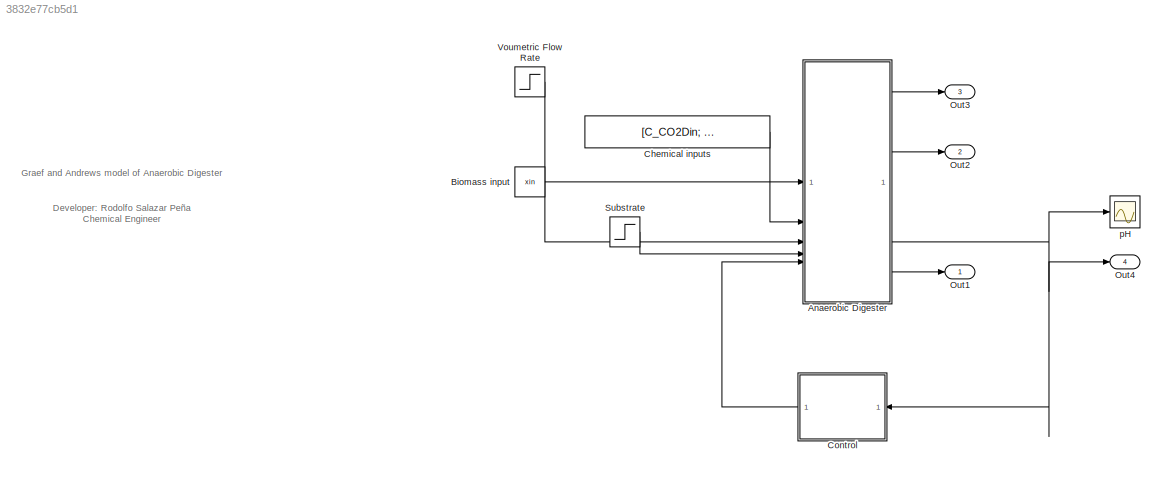
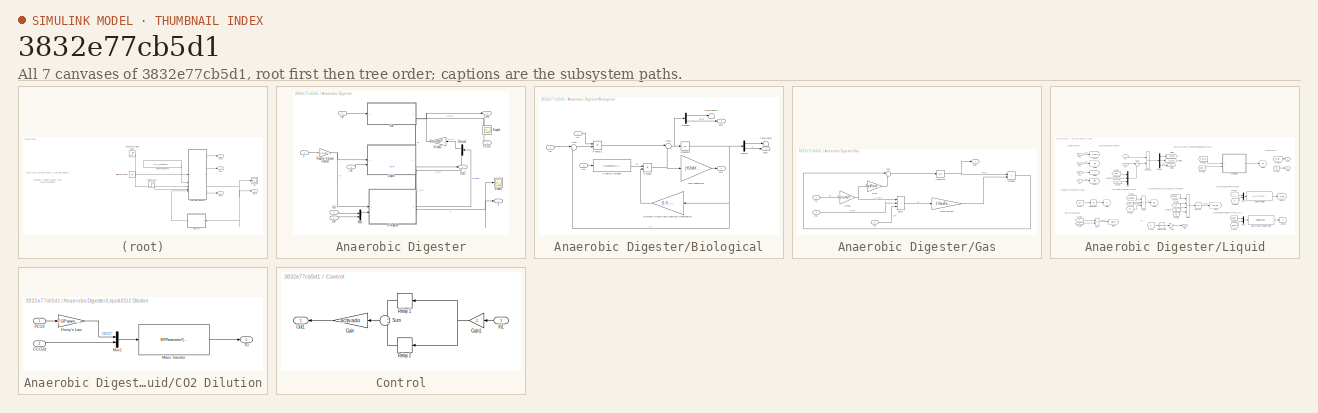
[diagram: thumbnail index - all 7 canvases of the model, root first then tree order]
MODEL slx_3832e77cb5d1
KIND model
CONFIG AbsTol = auto
CONFIG EnableMultiTasking = off
CONFIG FixedStep = auto
CONFIG MaxStep = auto
CONFIG MinStep = auto
CONFIG RelTol = 1e-3
CONFIG SampleTimeConstraint = Unconstrained
CONFIG SolverName = VariableStepAuto
CONFIG StartTime = 0.0
CONFIG StopTime = tspan
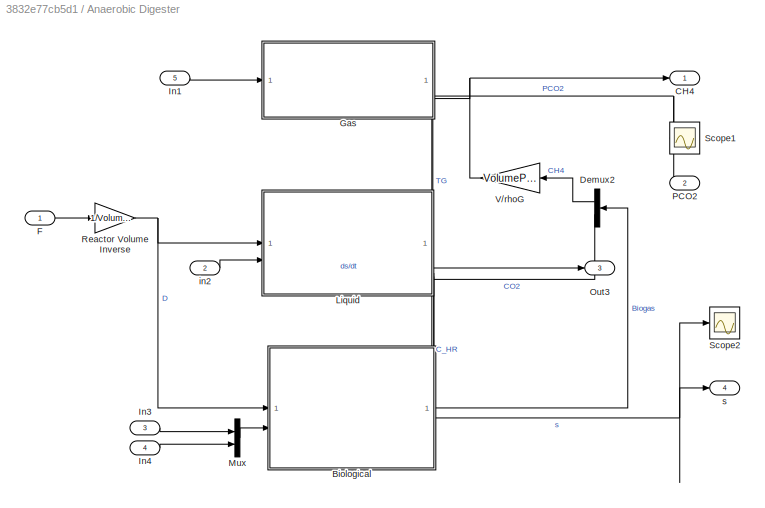
BLOCK [SubSystem] Anaerobic Digester
BLOCK [SubSystem] Anaerobic Digester/Biological
  Description = Image Credit: “Colorful Microorganisms: A Fascinating World Revealed” — image generated by Easy-Peasy.AI, licensed under Creative Commons. Source: easy-peasy.ai (https://easy-peasy.ai/ai-image-generator/images/colorful-microorganisms-intricate-shapes-forms-microbial-world
  PortSchema = {"entries":[{"content":{"sides":[{"content":{"connectorIds":["In1","In2"]},"type":"ConnectorPlacement.EquallySpacedRectSide","uuid":"94ecfc72-442c-41e1-8615-bec035df41b7"},{"content":{"connectorIds":["Out1"],"side":"RIGHT"},"type":"ConnectorPlacement.EquallySpacedRectSide","uuid":"bdca07f7-8c82-4860-9473-7970328f5f38"},{"content":{"connectorIds":["In3","Out2","Out3"],"side":"TOP"},"type":"Connecto...<+265ch>
BLOCK [Demux] Anaerobic Digester/Biological/Demux
  Outputs = 2
BLOCK [Demux] Anaerobic Digester/Biological/Demux1
  Outputs = 2
BLOCK [Gain] Anaerobic Digester/Biological/Gas Generation
  Gain = [YCH4X 0; YCO2X 0]
  Multiplication = Matrix(K*u)
BLOCK [Integrator] Anaerobic Digester/Biological/Integrator
  InitialCondition = [initx; inits]
BLOCK [Fcn] Anaerobic Digester/Biological/Kinetics Haldane
  Expr = Parameter1/(1+Parameter2/u(1)+u(1)/Parameter3)
BLOCK [Gain] Anaerobic Digester/Biological/Microbial Growth and Substrate Consumption
  Gain = [1 0; -1/YXS 0]
  Multiplication = Matrix(K*u)
BLOCK [Product] Anaerobic Digester/Biological/Product
BLOCK [Product] Anaerobic Digester/Biological/Product1
BLOCK [Sum] Anaerobic Digester/Biological/Sum
  Inputs = |+-
BLOCK [Sum] Anaerobic Digester/Biological/Sum1
  Inputs = |++
BLOCK [Terminator] Anaerobic Digester/Biological/Terminator
BLOCK [Terminator] Anaerobic Digester/Biological/Terminator1
BLOCK [Inport] Anaerobic Digester/Biological/in1
BLOCK [Inport] Anaerobic Digester/Biological/in2
  Port = 2
BLOCK [Inport] Anaerobic Digester/Biological/in3
  Port = 3
BLOCK [Outport] Anaerobic Digester/Biological/out1
BLOCK [Outport] Anaerobic Digester/Biological/out2
  Port = 2
BLOCK [Outport] Anaerobic Digester/Biological/out3
  Port = 3
BLOCK [Outport] Anaerobic Digester/CH4
BLOCK [Demux] Anaerobic Digester/Demux2
  Outputs = 2
BLOCK [Inport] Anaerobic Digester/F
BLOCK [SubSystem] Anaerobic Digester/Gas
  Description = Image Credit: “Particle Model of a Gas (Teilchenmodell Gas)” — by Kaneiderdaniel, licensed under CC BY-SA 3.0. Source: Wikimedia Commons (File:Teilchenmodell_Gas.svg)
  PortSchema = {"entries":[{"content":{"sides":[{"content":{"connectorIds":["In1"]},"type":"ConnectorPlacement.EquallySpacedRectSide","uuid":"3565c727-b36c-46d2-95bd-ab32174b37cb"},{"content":{"connectorIds":["In3"],"side":"RIGHT"},"type":"ConnectorPlacement.EquallySpacedRectSide","uuid":"c4e665d1-7db3-4509-b4b2-58bd1ad74d47"},{"content":{"side":"TOP"},"type":"ConnectorPlacement.EquallySpacedRectSide","uuid":"7f...<+377ch>
BLOCK [Gain] Anaerobic Digester/Gas/1//Gas Volume
  Gain = 1/GasParameter2
BLOCK [Integrator] Anaerobic Digester/Gas/Integrator
  InitialCondition = InitGas
BLOCK [Gain] Anaerobic Digester/Gas/P//VG
  Gain = GasParameter1/GasParameter2
BLOCK [Product] Anaerobic Digester/Gas/Product
BLOCK [Sum] Anaerobic Digester/Gas/Sum
  Inputs = |-+
BLOCK [Sum] Anaerobic Digester/Gas/Sum2
  IconShape = rectangular
  Inputs = ++|+
BLOCK [Gain] Anaerobic Digester/Gas/V//rhoG
  Gain = VolumeParameter/GasParameter3
BLOCK [Inport] Anaerobic Digester/Gas/in1
  Port = 2
BLOCK [Inport] Anaerobic Digester/Gas/in2
  Port = 3
BLOCK [Inport] Anaerobic Digester/Gas/in3
BLOCK [Outport] Anaerobic Digester/Gas/out1
BLOCK [Inport] Anaerobic Digester/In1
  Port = 5
BLOCK [Inport] Anaerobic Digester/In3
  Port = 3
BLOCK [Inport] Anaerobic Digester/In4
  Port = 4
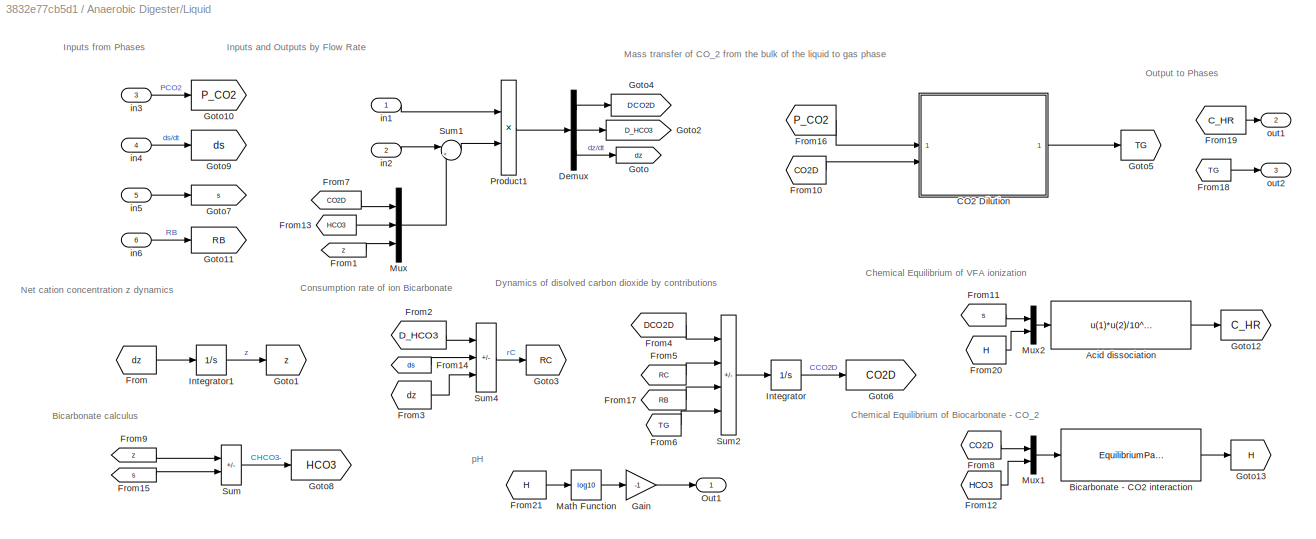
BLOCK [SubSystem] Anaerobic Digester/Liquid
  Description = Image Credit: “Liquid Water Waves Background” — image by Andrea Stöckel, in the public domain (CC0). Source: PublicDomainPictures.net (https://www.publicdomainpictures.net/es/view-image.php?image=431076&picture=liquido-de-fondo-de-agua-de-ondas)
  PortSchema = {"entries":[{"content":{"sides":[{"content":{"connectorIds":["In1","In2"]},"type":"ConnectorPlacement.EquallySpacedRectSide","uuid":"2cd52875-f219-461b-bc38-0fc8a9bb25f3"},{"content":{"connectorIds":["In6","Out1"],"side":"RIGHT"},"type":"ConnectorPlacement.EquallySpacedRectSide","uuid":"4617526c-ef4d-41e9-b20c-a88def61ea23"},{"content":{"connectorIds":["Out3","In3"],"side":"TOP"},"type":"Connector...<+426ch>
BLOCK [Fcn] Anaerobic Digester/Liquid/Acid dissociation
  Expr = u(1)*u(2)/10^(-IonicParameter)
BLOCK [Fcn] Anaerobic Digester/Liquid/Bicarbonate - CO2 interaction
  Expr = EquilibriumParameter*u(1)/u(2)
BLOCK [SubSystem] Anaerobic Digester/Liquid/CO2 Dilution
BLOCK [Inport] Anaerobic Digester/Liquid/CO2 Dilution/CCO2d
  Port = 2
BLOCK [Gain] Anaerobic Digester/Liquid/CO2 Dilution/Henry's Law
  Gain = TGParameter1
BLOCK [Fcn] Anaerobic Digester/Liquid/CO2 Dilution/Mass Transfer
  Expr = MTParameter*(u(2)-u(1))
BLOCK [Mux] Anaerobic Digester/Liquid/CO2 Dilution/Mux1
  DisplayOption = bar
  Inputs = 2
BLOCK [Inport] Anaerobic Digester/Liquid/CO2 Dilution/PCO2
BLOCK [Outport] Anaerobic Digester/Liquid/CO2 Dilution/TG
BLOCK [Demux] Anaerobic Digester/Liquid/Demux
  Outputs = 3
BLOCK [From] Anaerobic Digester/Liquid/From
  GotoTag = dz
BLOCK [From] Anaerobic Digester/Liquid/From1
  GotoTag = z
BLOCK [From] Anaerobic Digester/Liquid/From10
  GotoTag = CO2D
BLOCK [From] Anaerobic Digester/Liquid/From11
  GotoTag = s
BLOCK [From] Anaerobic Digester/Liquid/From12
  GotoTag = HCO3
BLOCK [From] Anaerobic Digester/Liquid/From13
  GotoTag = HCO3
BLOCK [From] Anaerobic Digester/Liquid/From14
  GotoTag = ds
BLOCK [From] Anaerobic Digester/Liquid/From15
  GotoTag = s
BLOCK [From] Anaerobic Digester/Liquid/From16
  GotoTag = P_CO2
BLOCK [From] Anaerobic Digester/Liquid/From17
  GotoTag = RB
BLOCK [From] Anaerobic Digester/Liquid/From18
  GotoTag = TG
BLOCK [From] Anaerobic Digester/Liquid/From19
  GotoTag = C_HR
BLOCK [From] Anaerobic Digester/Liquid/From2
  GotoTag = D_HCO3
BLOCK [From] Anaerobic Digester/Liquid/From20
  GotoTag = H
BLOCK [From] Anaerobic Digester/Liquid/From21
  GotoTag = H
BLOCK [From] Anaerobic Digester/Liquid/From3
  GotoTag = dz
BLOCK [From] Anaerobic Digester/Liquid/From4
  GotoTag = DCO2D
BLOCK [From] Anaerobic Digester/Liquid/From5
  GotoTag = RC
BLOCK [From] Anaerobic Digester/Liquid/From6
  GotoTag = TG
BLOCK [From] Anaerobic Digester/Liquid/From7
  GotoTag = CO2D
BLOCK [From] Anaerobic Digester/Liquid/From8
  GotoTag = CO2D
BLOCK [From] Anaerobic Digester/Liquid/From9
  GotoTag = z
BLOCK [Gain] Anaerobic Digester/Liquid/Gain
  Gain = -1
BLOCK [Goto] Anaerobic Digester/Liquid/Goto
  GotoTag = dz
BLOCK [Goto] Anaerobic Digester/Liquid/Goto1
  GotoTag = z
BLOCK [Goto] Anaerobic Digester/Liquid/Goto10
  GotoTag = P_CO2
BLOCK [Goto] Anaerobic Digester/Liquid/Goto11
  GotoTag = RB
BLOCK [Goto] Anaerobic Digester/Liquid/Goto12
  GotoTag = C_HR
BLOCK [Goto] Anaerobic Digester/Liquid/Goto13
  GotoTag = H
BLOCK [Goto] Anaerobic Digester/Liquid/Goto2
  GotoTag = D_HCO3
BLOCK [Goto] Anaerobic Digester/Liquid/Goto3
  GotoTag = RC
BLOCK [Goto] Anaerobic Digester/Liquid/Goto4
  GotoTag = DCO2D
BLOCK [Goto] Anaerobic Digester/Liquid/Goto5
  GotoTag = TG
BLOCK [Goto] Anaerobic Digester/Liquid/Goto6
  GotoTag = CO2D
BLOCK [Goto] Anaerobic Digester/Liquid/Goto7
  GotoTag = s
BLOCK [Goto] Anaerobic Digester/Liquid/Goto8
  GotoTag = HCO3
BLOCK [Goto] Anaerobic Digester/Liquid/Goto9
  GotoTag = ds
BLOCK [Integrator] Anaerobic Digester/Liquid/Integrator
  InitialCondition = InitLiquid1
BLOCK [Integrator] Anaerobic Digester/Liquid/Integrator1
  InitialCondition = InitLiquid2
BLOCK [Math] Anaerobic Digester/Liquid/Math Function
  Operator = log10
BLOCK [Mux] Anaerobic Digester/Liquid/Mux
  DisplayOption = bar
  Inputs = 3
BLOCK [Mux] Anaerobic Digester/Liquid/Mux1
  DisplayOption = bar
  Inputs = 2
BLOCK [Mux] Anaerobic Digester/Liquid/Mux2
  DisplayOption = bar
  Inputs = 2
BLOCK [Outport] Anaerobic Digester/Liquid/Out1
BLOCK [Product] Anaerobic Digester/Liquid/Product1
BLOCK [Sum] Anaerobic Digester/Liquid/Sum
  IconShape = rectangular
  Inputs = +-
BLOCK [Sum] Anaerobic Digester/Liquid/Sum1
  Inputs = |+-
BLOCK [Sum] Anaerobic Digester/Liquid/Sum2
  IconShape = rectangular
  Inputs = +|++-
BLOCK [Sum] Anaerobic Digester/Liquid/Sum4
  IconShape = rectangular
  Inputs = +|+-
BLOCK [Inport] Anaerobic Digester/Liquid/in1
BLOCK [Inport] Anaerobic Digester/Liquid/in2
  Port = 2
BLOCK [Inport] Anaerobic Digester/Liquid/in3
  Port = 3
BLOCK [Inport] Anaerobic Digester/Liquid/in4
  Port = 4
BLOCK [Inport] Anaerobic Digester/Liquid/in5
  Port = 5
BLOCK [Inport] Anaerobic Digester/Liquid/in6
  Port = 6
BLOCK [Outport] Anaerobic Digester/Liquid/out1
  Port = 2
BLOCK [Outport] Anaerobic Digester/Liquid/out2
  Port = 3
BLOCK [Mux] Anaerobic Digester/Mux
  DisplayOption = bar
  Inputs = 2
BLOCK [Outport] Anaerobic Digester/Out3
  Port = 3
BLOCK [Outport] Anaerobic Digester/PCO2
  Port = 2
BLOCK [Gain] Anaerobic Digester/Reactor Volume Inverse
  Gain = 1/VolumeParameter
BLOCK [Scope] Anaerobic Digester/Scope1
  ActiveDisplayYMaximum = 1
  ActiveDisplayYMinimum = -1
  DataLoggingVariableName = ScopeData1
  Floating = off
  GraphicalSettings = {"Style":{"BackgroundColor":[0.12941176470588237,0.12941176470588237,0.12941176470588237],"AxesColor":[0.07058823529411765,0.07058823529411765,0.07058823529411765],"LabelsColor":[0.8509803921568627,0.8509803921568627,0.8509803921568627],"PreserveColors":false,"Visible":[true],"LineStyle":["-"],"LineWidth":[1.5],"BarWidth":[0.9],"LineColor":["auto"],"LineFaceAlpha":[1],"LineEdgeAlpha":[1],"Marker":...<+1890ch>
  MultipleDisplayCache = [{"MaxYLimMag":1,"MaxYLimReal":1,"MinYLimMag":0,"MinYLimReal":-1,"PlotAsMagnitudePhase":false,"ShowGrid":true,"ShowLegend":false,"Title":"%<SignalLabel>","YLabel":""}]
  NumInputPorts = 1
  ScopeFrameLocation = window
  WasSavedAsWebScope = on
  WindowPosition = [403.000000,174.000000,560.000000,420.000000,]
BLOCK [Scope] Anaerobic Digester/Scope2
  ActiveDisplayYMaximum = 1
  ActiveDisplayYMinimum = -1
  DataLoggingVariableName = ScopeData2
  Floating = off
  GraphicalSettings = {"Style":{"BackgroundColor":[0.12941176470588237,0.12941176470588237,0.12941176470588237],"AxesColor":[0.07058823529411765,0.07058823529411765,0.07058823529411765],"LabelsColor":[0.8509803921568627,0.8509803921568627,0.8509803921568627],"PreserveColors":false,"Visible":[true],"LineStyle":["-"],"LineWidth":[1.5],"BarWidth":[0.9],"LineColor":["auto"],"LineFaceAlpha":[1],"LineEdgeAlpha":[1],"Marker":...<+1884ch>
  MultipleDisplayCache = [{"MaxYLimMag":1,"MaxYLimReal":1,"MinYLimMag":0,"MinYLimReal":-1,"PlotAsMagnitudePhase":false,"ShowGrid":true,"ShowLegend":false,"Title":"%<SignalLabel>","YLabel":""}]
  NumInputPorts = 1
  ScopeFrameLocation = window
  WasSavedAsWebScope = on
  WindowPosition = [403.000000,174.000000,560.000000,420.000000,]
BLOCK [Gain] Anaerobic Digester/V//rhoG
  Gain = VolumeParameter/rhoG
BLOCK [Inport] Anaerobic Digester/in2
  Port = 2
BLOCK [Outport] Anaerobic Digester/s
  Port = 4
BLOCK [Constant] Biomass input
  Value = xin
BLOCK [Constant] Chemical inputs
  Value = [C_CO2Din; C_HCO3in; zin]
BLOCK [SubSystem] Control
BLOCK [Gain] Control/Gain
  Gain = activado
BLOCK [Gain] Control/Gain1
  Gain = -1
BLOCK [Inport] Control/In1
BLOCK [Outport] Control/Out1
BLOCK [Relay] Control/Relay 1
  OffSwitchValue = -pHTurnedOff
  OnOutputValue = GasFlow1
  OnSwitchValue = -pHThreshold1
BLOCK [Relay] Control/Relay 2
  OffSwitchValue = -pHTurnedOff
  OnOutputValue = GasFlow2
  OnSwitchValue = -pHThreshold2
BLOCK [Sum] Control/Sum
BLOCK [Outport] Out1
BLOCK [Outport] Out2
  Port = 2
BLOCK [Outport] Out3
  Port = 3
BLOCK [Outport] Out4
  Port = 4
BLOCK [Step] Substrate
  After = sif2
  Before = sif1
  SampleTime = 0
BLOCK [Step] Voumetric Flow Rate
  After = F2
  Before = F1
  SampleTime = 0
BLOCK [Scope] pH
  ActiveDisplayYMaximum = 7.2867188541254588
  ActiveDisplayYMinimum = 3.560384025804944
  Floating = off
  GraphicalSettings = {"Style":{"BackgroundColor":[0.12941176470588237,0.12941176470588237,0.12941176470588237],"AxesColor":[0.07058823529411765,0.07058823529411765,0.07058823529411765],"LabelsColor":[0.8509803921568627,0.8509803921568627,0.8509803921568627],"PreserveColors":false,"Visible":[true],"LineStyle":["-"],"LineWidth":[1.5],"BarWidth":[0.9],"LineColor":["auto"],"LineFaceAlpha":[1],"LineEdgeAlpha":[1],"Marker":...<+1922ch>
  MultipleDisplayCache = [{"MaxYLimMag":7.2867188541254588,"MaxYLimReal":7.2867188541254588,"MinYLimMag":3.560384025804944,"MinYLimReal":3.560384025804944,"PlotAsMagnitudePhase":false,"ShowGrid":true,"ShowLegend":false,"Title":"%<SignalLabel>","YLabel":""}]
  NumInputPorts = 1
  ScopeFrameLocation = window
  WasSavedAsWebScope = on
  WindowPosition = [181.000000,167.000000,560.000000,420.000000,]
ANNOTATION (root): Developer: Rodolfo Salazar Peña Chemical Engineer
ANNOTATION (root): Graef and Andrews model of Anaerobic Digester
ANNOTATION Anaerobic Digester/Liquid: Bicarbonate calculus
ANNOTATION Anaerobic Digester/Liquid: Chemical Equilibrium of Biocarbonate - CO_2
ANNOTATION Anaerobic Digester/Liquid: Chemical Equilibrium of VFA ionization
ANNOTATION Anaerobic Digester/Liquid: Consumption rate of ion Bicarbonate
ANNOTATION Anaerobic Digester/Liquid: Dynamics of disolved carbon dioxide by contributions
ANNOTATION Anaerobic Digester/Liquid: Inputs and Outputs by Flow Rate
ANNOTATION Anaerobic Digester/Liquid: Inputs from Phases
ANNOTATION Anaerobic Digester/Liquid: Mass transfer of CO_2 from the bulk of the liquid to gas phase
ANNOTATION Anaerobic Digester/Liquid: Net cation concentration z dynamics
ANNOTATION Anaerobic Digester/Liquid: Output to Phases
ANNOTATION Anaerobic Digester/Liquid: pH
LINE Anaerobic Digester/Biological/Demux1:1 -> Anaerobic Digester/Biological/Terminator1:1
LINE Anaerobic Digester/Biological/Demux1:2 -> Anaerobic Digester/Biological/out2:1
LINE Anaerobic Digester/Biological/Demux:1 -> Anaerobic Digester/Biological/Terminator:1
LINE Anaerobic Digester/Biological/Demux:2 -> Anaerobic Digester/Biological/out3:1
LINE Anaerobic Digester/Biological/Gas Generation:1 -> Anaerobic Digester/Biological/out1:1
NET Anaerobic Digester/Biological/Integrator:1 -> Anaerobic Digester/Biological/Demux:1, Anaerobic Digester/Biological/Microbial Growth and Substrate Consumption:1, Anaerobic Digester/Biological/Sum:2
LINE Anaerobic Digester/Biological/Kinetics Haldane:1 -> Anaerobic Digester/Biological/Product:1
LINE Anaerobic Digester/Biological/Microbial Growth and Substrate Consumption:1 -> Anaerobic Digester/Biological/Product:2
LINE Anaerobic Digester/Biological/Product1:1 -> Anaerobic Digester/Biological/Sum1:1
NET Anaerobic Digester/Biological/Product:1 -> Anaerobic Digester/Biological/Gas Generation:1, Anaerobic Digester/Biological/Sum1:2
NET Anaerobic Digester/Biological/Sum1:1 -> Anaerobic Digester/Biological/Demux1:1, Anaerobic Digester/Biological/Integrator:1
LINE Anaerobic Digester/Biological/Sum:1 -> Anaerobic Digester/Biological/Product1:2
LINE Anaerobic Digester/Biological/in1:1 -> Anaerobic Digester/Biological/Product1:1
LINE Anaerobic Digester/Biological/in2:1 -> Anaerobic Digester/Biological/Sum:1
LINE Anaerobic Digester/Biological/in3:1 -> Anaerobic Digester/Biological/Kinetics Haldane:1
LINE Anaerobic Digester/Biological:1 -> Anaerobic Digester/Demux2:1
LINE Anaerobic Digester/Biological:2 -> Anaerobic Digester/Liquid:4
NET Anaerobic Digester/Biological:3 -> Anaerobic Digester/Liquid:5, Anaerobic Digester/Scope2:1, Anaerobic Digester/s:1
LINE Anaerobic Digester/Demux2:1 -> Anaerobic Digester/V//rhoG:1
LINE Anaerobic Digester/Demux2:2 -> Anaerobic Digester/Liquid:6
LINE Anaerobic Digester/F:1 -> Anaerobic Digester/Reactor Volume Inverse:1
LINE Anaerobic Digester/Gas/1//Gas Volume:1 -> Anaerobic Digester/Gas/Product:2
NET Anaerobic Digester/Gas/Integrator:1 -> Anaerobic Digester/Gas/Product:1, Anaerobic Digester/Gas/out1:1
LINE Anaerobic Digester/Gas/P//VG:1 -> Anaerobic Digester/Gas/Sum:2
LINE Anaerobic Digester/Gas/Product:1 -> Anaerobic Digester/Gas/Sum:1
LINE Anaerobic Digester/Gas/Sum2:1 -> Anaerobic Digester/Gas/1//Gas Volume:1
LINE Anaerobic Digester/Gas/Sum:1 -> Anaerobic Digester/Gas/Integrator:1
NET Anaerobic Digester/Gas/V//rhoG:1 -> Anaerobic Digester/Gas/P//VG:1, Anaerobic Digester/Gas/Sum2:1
LINE Anaerobic Digester/Gas/in1:1 -> Anaerobic Digester/Gas/V//rhoG:1
LINE Anaerobic Digester/Gas/in2:1 -> Anaerobic Digester/Gas/Sum2:2
LINE Anaerobic Digester/Gas/in3:1 -> Anaerobic Digester/Gas/Sum2:3
NET Anaerobic Digester/Gas:1 -> Anaerobic Digester/Liquid:3, Anaerobic Digester/PCO2:1, Anaerobic Digester/Scope1:1
LINE Anaerobic Digester/In1:1 -> Anaerobic Digester/Gas:1
LINE Anaerobic Digester/In3:1 -> Anaerobic Digester/Mux:1
LINE Anaerobic Digester/In4:1 -> Anaerobic Digester/Mux:2
LINE Anaerobic Digester/Liquid/Acid dissociation:1 -> Anaerobic Digester/Liquid/Goto12:1
LINE Anaerobic Digester/Liquid/Bicarbonate - CO2 interaction:1 -> Anaerobic Digester/Liquid/Goto13:1
LINE Anaerobic Digester/Liquid/CO2 Dilution/CCO2d:1 -> Anaerobic Digester/Liquid/CO2 Dilution/Mux1:2
LINE Anaerobic Digester/Liquid/CO2 Dilution/Henry's Law:1 -> Anaerobic Digester/Liquid/CO2 Dilution/Mux1:1
LINE Anaerobic Digester/Liquid/CO2 Dilution/Mass Transfer:1 -> Anaerobic Digester/Liquid/CO2 Dilution/TG:1
LINE Anaerobic Digester/Liquid/CO2 Dilution/Mux1:1 -> Anaerobic Digester/Liquid/CO2 Dilution/Mass Transfer:1
LINE Anaerobic Digester/Liquid/CO2 Dilution/PCO2:1 -> Anaerobic Digester/Liquid/CO2 Dilution/Henry's Law:1
LINE Anaerobic Digester/Liquid/CO2 Dilution:1 -> Anaerobic Digester/Liquid/Goto5:1
LINE Anaerobic Digester/Liquid/Demux:1 -> Anaerobic Digester/Liquid/Goto4:1
LINE Anaerobic Digester/Liquid/Demux:2 -> Anaerobic Digester/Liquid/Goto2:1
LINE Anaerobic Digester/Liquid/Demux:3 -> Anaerobic Digester/Liquid/Goto:1
LINE Anaerobic Digester/Liquid/From10:1 -> Anaerobic Digester/Liquid/CO2 Dilution:2
LINE Anaerobic Digester/Liquid/From11:1 -> Anaerobic Digester/Liquid/Mux2:1
LINE Anaerobic Digester/Liquid/From12:1 -> Anaerobic Digester/Liquid/Mux1:2
LINE Anaerobic Digester/Liquid/From13:1 -> Anaerobic Digester/Liquid/Mux:2
LINE Anaerobic Digester/Liquid/From14:1 -> Anaerobic Digester/Liquid/Sum4:2
LINE Anaerobic Digester/Liquid/From15:1 -> Anaerobic Digester/Liquid/Sum:2
LINE Anaerobic Digester/Liquid/From16:1 -> Anaerobic Digester/Liquid/CO2 Dilution:1
LINE Anaerobic Digester/Liquid/From17:1 -> Anaerobic Digester/Liquid/Sum2:3
LINE Anaerobic Digester/Liquid/From18:1 -> Anaerobic Digester/Liquid/out2:1
LINE Anaerobic Digester/Liquid/From19:1 -> Anaerobic Digester/Liquid/out1:1
LINE Anaerobic Digester/Liquid/From1:1 -> Anaerobic Digester/Liquid/Mux:3
LINE Anaerobic Digester/Liquid/From20:1 -> Anaerobic Digester/Liquid/Mux2:2
LINE Anaerobic Digester/Liquid/From21:1 -> Anaerobic Digester/Liquid/Math Function:1
LINE Anaerobic Digester/Liquid/From2:1 -> Anaerobic Digester/Liquid/Sum4:1
LINE Anaerobic Digester/Liquid/From3:1 -> Anaerobic Digester/Liquid/Sum4:3
LINE Anaerobic Digester/Liquid/From4:1 -> Anaerobic Digester/Liquid/Sum2:1
LINE Anaerobic Digester/Liquid/From5:1 -> Anaerobic Digester/Liquid/Sum2:2
LINE Anaerobic Digester/Liquid/From6:1 -> Anaerobic Digester/Liquid/Sum2:4
LINE Anaerobic Digester/Liquid/From7:1 -> Anaerobic Digester/Liquid/Mux:1
LINE Anaerobic Digester/Liquid/From8:1 -> Anaerobic Digester/Liquid/Mux1:1
LINE Anaerobic Digester/Liquid/From9:1 -> Anaerobic Digester/Liquid/Sum:1
LINE Anaerobic Digester/Liquid/From:1 -> Anaerobic Digester/Liquid/Integrator1:1
LINE Anaerobic Digester/Liquid/Gain:1 -> Anaerobic Digester/Liquid/Out1:1
LINE Anaerobic Digester/Liquid/Integrator1:1 -> Anaerobic Digester/Liquid/Goto1:1
LINE Anaerobic Digester/Liquid/Integrator:1 -> Anaerobic Digester/Liquid/Goto6:1
LINE Anaerobic Digester/Liquid/Math Function:1 -> Anaerobic Digester/Liquid/Gain:1
LINE Anaerobic Digester/Liquid/Mux1:1 -> Anaerobic Digester/Liquid/Bicarbonate - CO2 interaction:1
LINE Anaerobic Digester/Liquid/Mux2:1 -> Anaerobic Digester/Liquid/Acid dissociation:1
LINE Anaerobic Digester/Liquid/Mux:1 -> Anaerobic Digester/Liquid/Sum1:2
LINE Anaerobic Digester/Liquid/Product1:1 -> Anaerobic Digester/Liquid/Demux:1
LINE Anaerobic Digester/Liquid/Sum1:1 -> Anaerobic Digester/Liquid/Product1:2
LINE Anaerobic Digester/Liquid/Sum2:1 -> Anaerobic Digester/Liquid/Integrator:1
LINE Anaerobic Digester/Liquid/Sum4:1 -> Anaerobic Digester/Liquid/Goto3:1
LINE Anaerobic Digester/Liquid/Sum:1 -> Anaerobic Digester/Liquid/Goto8:1
LINE Anaerobic Digester/Liquid/in1:1 -> Anaerobic Digester/Liquid/Product1:1
LINE Anaerobic Digester/Liquid/in2:1 -> Anaerobic Digester/Liquid/Sum1:1
LINE Anaerobic Digester/Liquid/in3:1 -> Anaerobic Digester/Liquid/Goto10:1
LINE Anaerobic Digester/Liquid/in4:1 -> Anaerobic Digester/Liquid/Goto9:1
LINE Anaerobic Digester/Liquid/in5:1 -> Anaerobic Digester/Liquid/Goto7:1
LINE Anaerobic Digester/Liquid/in6:1 -> Anaerobic Digester/Liquid/Goto11:1
LINE Anaerobic Digester/Liquid:1 -> Anaerobic Digester/Out3:1
LINE Anaerobic Digester/Liquid:2 -> Anaerobic Digester/Biological:3
LINE Anaerobic Digester/Liquid:3 -> Anaerobic Digester/Gas:2
LINE Anaerobic Digester/Mux:1 -> Anaerobic Digester/Biological:2
NET Anaerobic Digester/Reactor Volume Inverse:1 -> Anaerobic Digester/Biological:1, Anaerobic Digester/Liquid:1
NET Anaerobic Digester/V//rhoG:1 -> Anaerobic Digester/CH4:1, Anaerobic Digester/Gas:3
LINE Anaerobic Digester/in2:1 -> Anaerobic Digester/Liquid:2
LINE Anaerobic Digester:1 -> Out3:1
LINE Anaerobic Digester:2 -> Out2:1
NET Anaerobic Digester:3 -> Control:1, Out4:1, pH:1
LINE Anaerobic Digester:4 -> Out1:1
LINE Biomass input:1 -> Anaerobic Digester:3
LINE Chemical inputs:1 -> Anaerobic Digester:2
NET Control/Gain1:1 -> Control/Relay 1:1, Control/Relay 2:1
LINE Control/Gain:1 -> Control/Out1:1
LINE Control/In1:1 -> Control/Gain1:1
LINE Control/Relay 1:1 -> Control/Sum:1
LINE Control/Relay 2:1 -> Control/Sum:2
LINE Control/Sum:1 -> Control/Gain:1
LINE Control:1 -> Anaerobic Digester:5
LINE Substrate:1 -> Anaerobic Digester:4
LINE Voumetric Flow Rate:1 -> Anaerobic Digester:1
note: NET lines group one-source signal fan-out (src -> all destinations, sorted); 1:1 wires keep LINE
